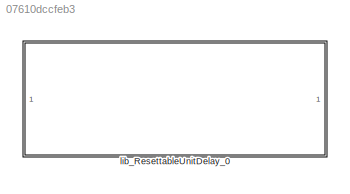
MODEL slx_07610dccfeb3
KIND library
CONFIG AbsTol = auto
CONFIG EnableMultiTasking = off
CONFIG FixedStep = auto
CONFIG MaxStep = auto
CONFIG MinStep = auto
CONFIG RelTol = 1e-3
CONFIG SampleTimeConstraint = Unconstrained
CONFIG SolverName = VariableStepAuto
CONFIG StartTime = 0.0
CONFIG StopTime = 10.0
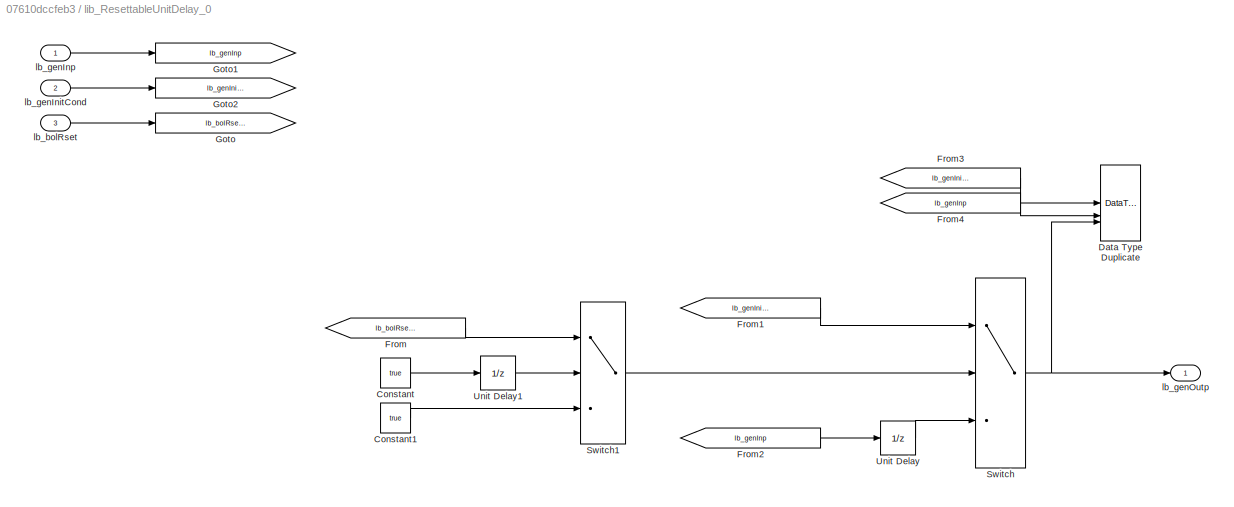
BLOCK [SubSystem] lib_ResettableUnitDelay_0
BLOCK [Constant] lib_ResettableUnitDelay_0/Constant
  Value = true
BLOCK [Constant] lib_ResettableUnitDelay_0/Constant1
  Value = true
BLOCK [DataTypeDuplicate] lib_ResettableUnitDelay_0/Data Type Duplicate
  NumInputPorts = 3
BLOCK [From] lib_ResettableUnitDelay_0/From
  GotoTag = lb_bolRsetCond
BLOCK [From] lib_ResettableUnitDelay_0/From1
  GotoTag = lb_genInitCond
BLOCK [From] lib_ResettableUnitDelay_0/From2
  GotoTag = lb_genInp
BLOCK [From] lib_ResettableUnitDelay_0/From3
  GotoTag = lb_genInitCond
BLOCK [From] lib_ResettableUnitDelay_0/From4
  GotoTag = lb_genInp
BLOCK [Goto] lib_ResettableUnitDelay_0/Goto
  GotoTag = lb_bolRsetCond
BLOCK [Goto] lib_ResettableUnitDelay_0/Goto1
  GotoTag = lb_genInp
BLOCK [Goto] lib_ResettableUnitDelay_0/Goto2
  GotoTag = lb_genInitCond
BLOCK [Switch] lib_ResettableUnitDelay_0/Switch
  Criteria = u2 ~= 0
  InputSameDT = off
BLOCK [Switch] lib_ResettableUnitDelay_0/Switch1
  Criteria = u2 ~= 0
  InputSameDT = off
  SaturateOnIntegerOverflow = off
BLOCK [UnitDelay] lib_ResettableUnitDelay_0/Unit Delay
  HasFrameUpgradeWarning = on
  SampleTime = -1
BLOCK [UnitDelay] lib_ResettableUnitDelay_0/Unit Delay1
  HasFrameUpgradeWarning = on
  InitialCondition = false
  SampleTime = -1
BLOCK [Inport] lib_ResettableUnitDelay_0/lb_bolRset
  Port = 3
BLOCK [Inport] lib_ResettableUnitDelay_0/lb_genInitCond
  Port = 2
BLOCK [Inport] lib_ResettableUnitDelay_0/lb_genInp
BLOCK [Outport] lib_ResettableUnitDelay_0/lb_genOutp
  VectorParamsAs1DForOutWhenUnconnected = off
LINE lib_ResettableUnitDelay_0/Constant1:1 -> lib_ResettableUnitDelay_0/Switch1:3
LINE lib_ResettableUnitDelay_0/Constant:1 -> lib_ResettableUnitDelay_0/Unit Delay1:1
LINE lib_ResettableUnitDelay_0/From1:1 -> lib_ResettableUnitDelay_0/Switch:1
LINE lib_ResettableUnitDelay_0/From2:1 -> lib_ResettableUnitDelay_0/Unit Delay:1
LINE lib_ResettableUnitDelay_0/From3:1 -> lib_ResettableUnitDelay_0/Data Type Duplicate:1
LINE lib_ResettableUnitDelay_0/From4:1 -> lib_ResettableUnitDelay_0/Data Type Duplicate:2
LINE lib_ResettableUnitDelay_0/From:1 -> lib_ResettableUnitDelay_0/Switch1:1
LINE lib_ResettableUnitDelay_0/Switch1:1 -> lib_ResettableUnitDelay_0/Switch:2
NET lib_ResettableUnitDelay_0/Switch:1 -> lib_ResettableUnitDelay_0/Data Type Duplicate:3, lib_ResettableUnitDelay_0/lb_genOutp:1
LINE lib_ResettableUnitDelay_0/Unit Delay1:1 -> lib_ResettableUnitDelay_0/Switch1:2
LINE lib_ResettableUnitDelay_0/Unit Delay:1 -> lib_ResettableUnitDelay_0/Switch:3
LINE lib_ResettableUnitDelay_0/lb_bolRset:1 -> lib_ResettableUnitDelay_0/Goto:1
LINE lib_ResettableUnitDelay_0/lb_genInitCond:1 -> lib_ResettableUnitDelay_0/Goto2:1
LINE lib_ResettableUnitDelay_0/lb_genInp:1 -> lib_ResettableUnitDelay_0/Goto1:1
note: NET lines group one-source signal fan-out (src -> all destinations, sorted); 1:1 wires keep LINE
